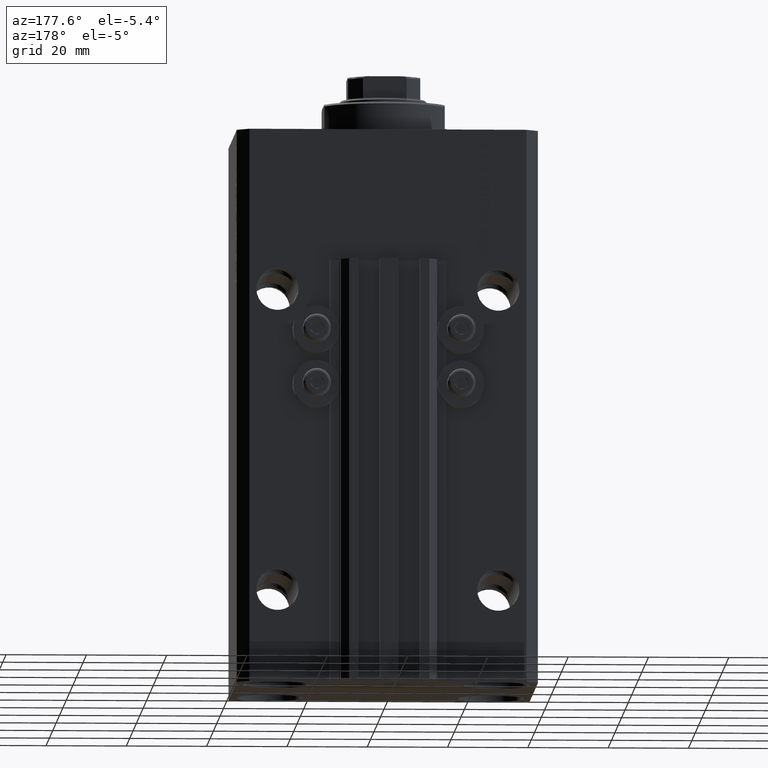
[diagram: clean part render]
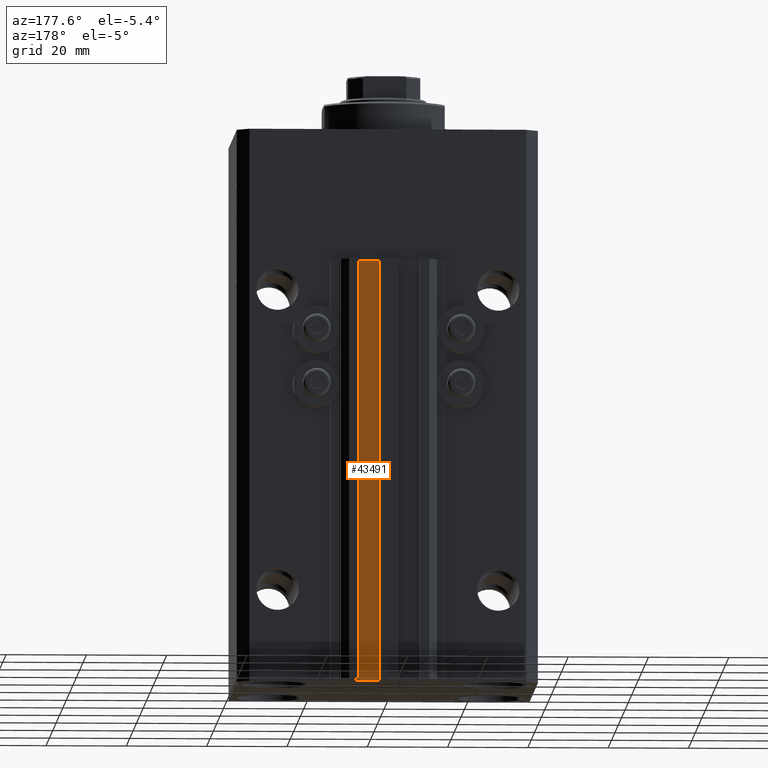
[diagram: same view with one face highlighted and labeled with its STEP entity id]
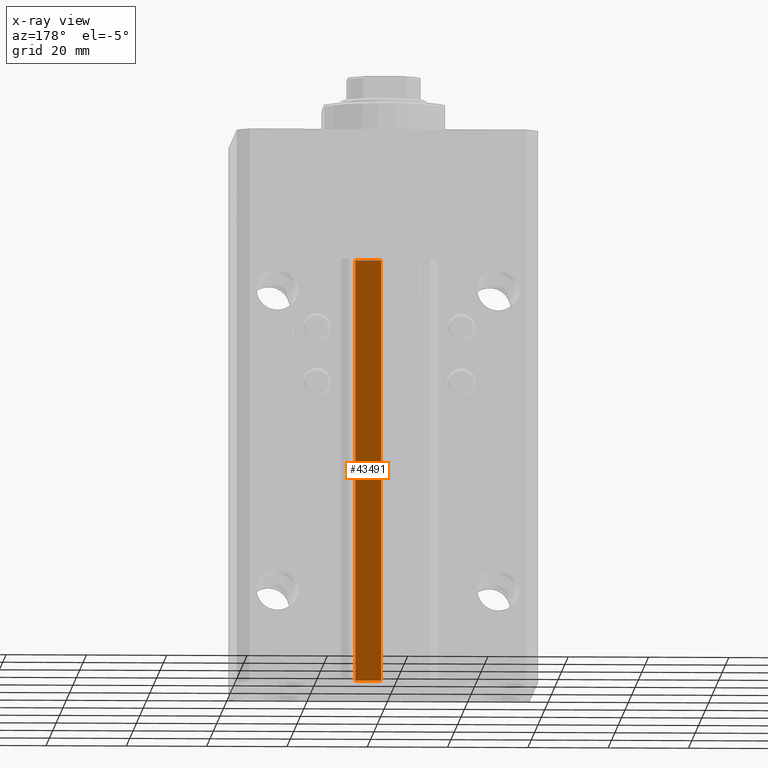
[diagram: x-ray of the same camera — body ghosted, the highlighted face saturated]
A machine part, auxiliary view. The second image highlights one B-rep face of the part: STEP entity #43491.
The next image is the same camera in x-ray: the body ghosted, the highlighted face saturated — about 0% of this face is hidden behind the body in this view.
In plain terms, the highlighted planar face has unit normal (-0, 1, 0).
Its self-contained STEP definition (entity closure, byte-faithful):
#129 = VECTOR ( 'NONE', #37865, 1000.000000000000000 ) ;
#1550 = DIRECTION ( 'NONE',  ( -1.000000000000000000, -1.084202172485504828E-15, 0.000000000000000000 ) ) ;
#1606 = VECTOR ( 'NONE', #1550, 1000.000000000000000 ) ;
#3592 = LINE ( 'NONE', #36441, #21529 ) ;
#3673 = FACE_OUTER_BOUND ( 'NONE', #44446, .T. ) ;
#4804 = EDGE_CURVE ( 'NONE', #14850, #46572, #12445, .T. ) ;
#6544 = CARTESIAN_POINT ( 'NONE',  ( 1.800000000000000933, 29.50000000000000000, -138.0000000000000000 ) ) ;
#6692 = ORIENTED_EDGE ( 'NONE', *, *, #33148, .F. ) ;
#7058 = EDGE_CURVE ( 'NONE', #9063, #46572, #3592, .T. ) ;
#7502 = EDGE_CURVE ( 'NONE', #9593, #9063, #42089, .T. ) ;
#7645 = CARTESIAN_POINT ( 'NONE',  ( 8.199999999999999289, 29.50000000000000711, -138.0000000000000000 ) ) ;
#7725 = DIRECTION ( 'NONE',  ( -1.084202172485504828E-15, 1.000000000000000000, 0.000000000000000000 ) ) ;
#8482 = CARTESIAN_POINT ( 'NONE',  ( 1.800000000000000933, 29.50000000000000000, -33.00000000000000000 ) ) ;
#9063 = VERTEX_POINT ( 'NONE', #6544 ) ;
#9593 = VERTEX_POINT ( 'NONE', #26743 ) ;
#12416 = DIRECTION ( 'NONE',  ( 0.000000000000000000, 0.000000000000000000, 1.000000000000000000 ) ) ;
#12445 = LINE ( 'NONE', #23233, #129 ) ;
#13384 = AXIS2_PLACEMENT_3D ( 'NONE', #29305, #7725, #22352 ) ;
#14617 = DIRECTION ( 'NONE',  ( 0.000000000000000000, 0.000000000000000000, 1.000000000000000000 ) ) ;
#14695 = PLANE ( 'NONE',  #13384 ) ;
#14850 = VERTEX_POINT ( 'NONE', #15945 ) ;
#15945 = CARTESIAN_POINT ( 'NONE',  ( 8.199999999999999289, 29.50000000000000711, -33.00000000000000000 ) ) ;
#16012 = LINE ( 'NONE', #7645, #24637 ) ;
#21529 = VECTOR ( 'NONE', #14617, 1000.000000000000000 ) ;
#22352 = DIRECTION ( 'NONE',  ( -1.000000000000000000, -1.084202172485504828E-15, 0.000000000000000000 ) ) ;
#23233 = CARTESIAN_POINT ( 'NONE',  ( 8.199999999999999289, 29.50000000000000711, -33.00000000000000000 ) ) ;
#24637 = VECTOR ( 'NONE', #12416, 1000.000000000000000 ) ;
#26743 = CARTESIAN_POINT ( 'NONE',  ( 8.199999999999999289, 29.50000000000000711, -138.0000000000000000 ) ) ;
#29305 = CARTESIAN_POINT ( 'NONE',  ( 8.199999999999999289, 29.50000000000000711, -138.0000000000000000 ) ) ;
#33148 = EDGE_CURVE ( 'NONE', #9593, #14850, #16012, .T. ) ;
#36441 = CARTESIAN_POINT ( 'NONE',  ( 1.800000000000000933, 29.50000000000000000, -138.0000000000000000 ) ) ;
#36635 = ORIENTED_EDGE ( 'NONE', *, *, #7058, .T. ) ;
#37171 = ORIENTED_EDGE ( 'NONE', *, *, #7502, .T. ) ;
#37865 = DIRECTION ( 'NONE',  ( -1.000000000000000000, -1.084202172485504828E-15, 0.000000000000000000 ) ) ;
#38062 = ORIENTED_EDGE ( 'NONE', *, *, #4804, .F. ) ;
#38483 = CARTESIAN_POINT ( 'NONE',  ( 8.199999999999999289, 29.50000000000000711, -138.0000000000000000 ) ) ;
#42089 = LINE ( 'NONE', #38483, #1606 ) ;
#43491 = ADVANCED_FACE ( 'NONE', ( #3673 ), #14695, .T. ) ;
#44446 = EDGE_LOOP ( 'NONE', ( #38062, #6692, #37171, #36635 ) ) ;
#46572 = VERTEX_POINT ( 'NONE', #8482 ) ;